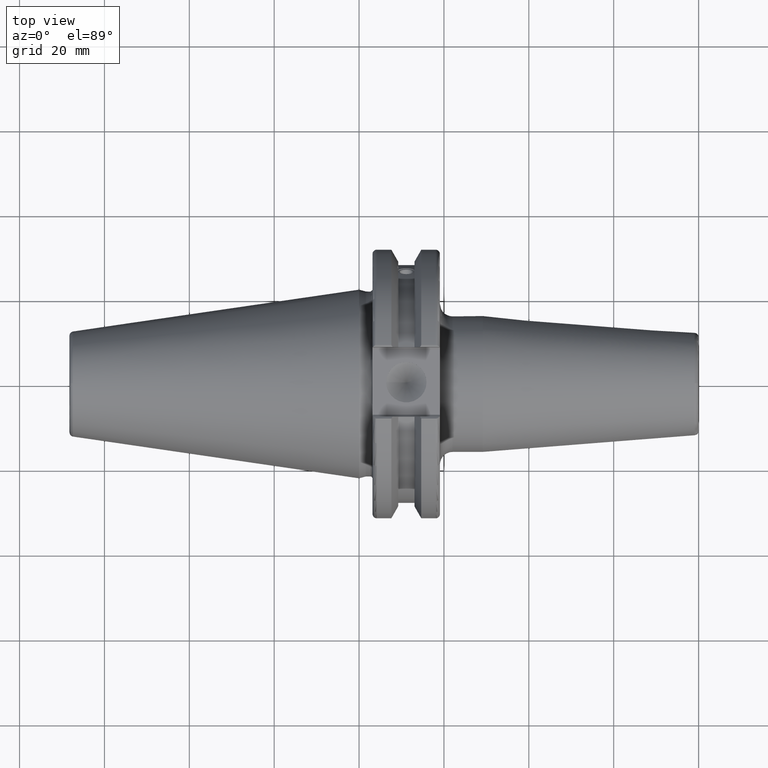
[diagram: clean part render]
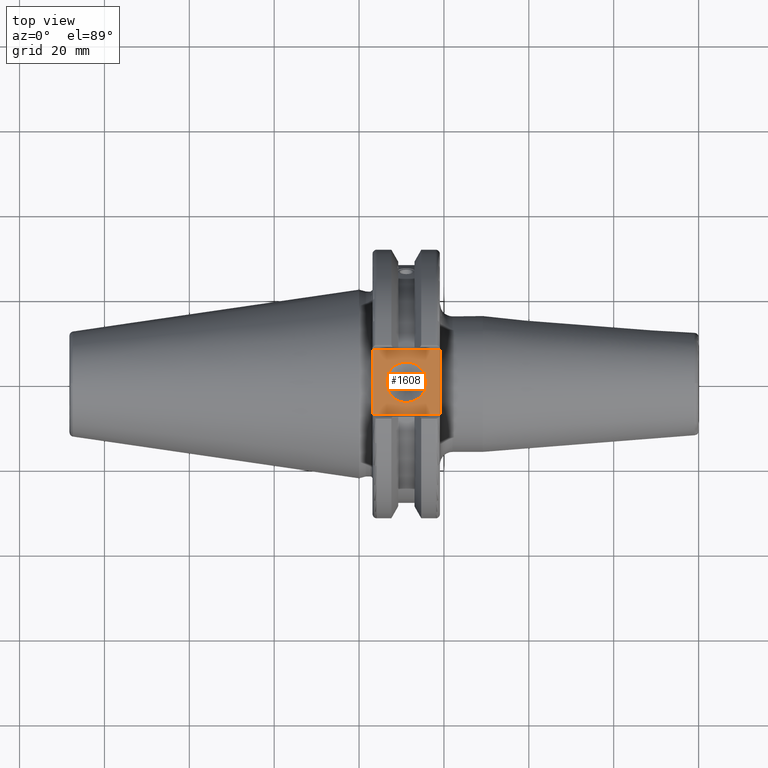
[diagram: same view with one face highlighted and labeled with its STEP entity id]
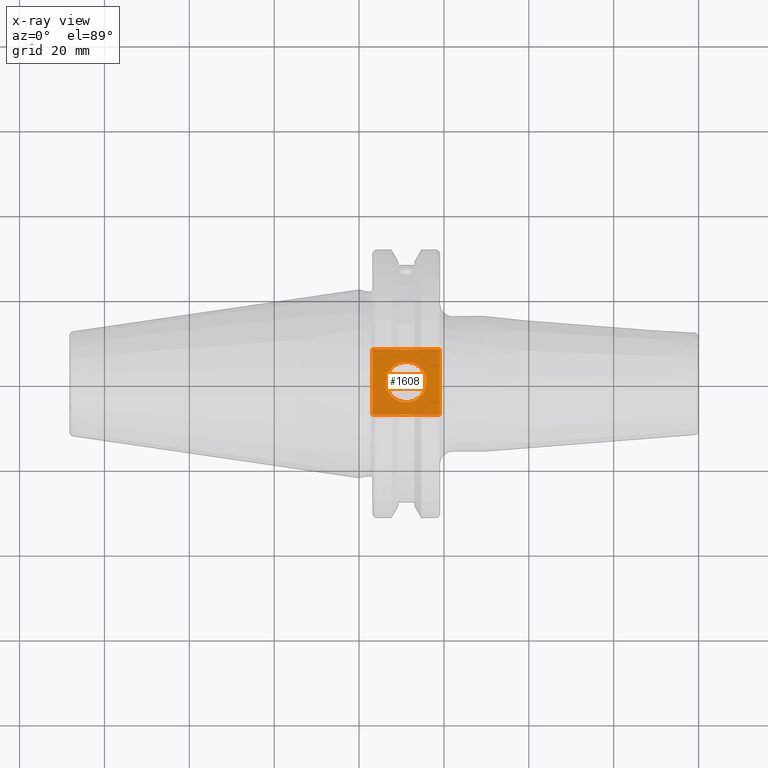
[diagram: x-ray of the same camera — body ghosted, the highlighted face saturated]
A machine part, top view. The second image highlights one B-rep face of the part: STEP entity #1608.
The next image is the same camera in x-ray: the body ghosted, the highlighted face saturated — about 0% of this face is hidden behind the body in this view.
In plain terms, the highlighted planar face has unit normal (0, 0, 1).
Its self-contained STEP definition (entity closure, byte-faithful):
#77=FACE_BOUND('',#331,.T.);
#136=PLANE('',#1814);
#223=FACE_OUTER_BOUND('',#330,.T.);
#330=EDGE_LOOP('',(#1462,#1463,#1464,#1465));
#331=EDGE_LOOP('',(#1466));
#405=CIRCLE('',#1802,4.7625);
#420=LINE('',#2343,#516);
#465=LINE('',#2786,#561);
#493=LINE('',#3015,#589);
#495=LINE('',#3018,#591);
#516=VECTOR('',#1882,10.);
#561=VECTOR('',#2113,10.);
#589=VECTOR('',#2207,10.);
#591=VECTOR('',#2211,10.);
#641=VERTEX_POINT('',#2340);
#642=VERTEX_POINT('',#2342);
#732=VERTEX_POINT('',#2783);
#733=VERTEX_POINT('',#2785);
#779=VERTEX_POINT('',#3054);
#803=EDGE_CURVE('',#641,#642,#420,.T.);
#926=EDGE_CURVE('',#732,#733,#465,.T.);
#989=EDGE_CURVE('',#642,#732,#493,.T.);
#991=EDGE_CURVE('',#733,#641,#495,.T.);
#1006=EDGE_CURVE('',#779,#779,#405,.T.);
#1462=ORIENTED_EDGE('',*,*,#989,.F.);
#1463=ORIENTED_EDGE('',*,*,#803,.F.);
#1464=ORIENTED_EDGE('',*,*,#991,.F.);
#1465=ORIENTED_EDGE('',*,*,#926,.F.);
#1466=ORIENTED_EDGE('',*,*,#1006,.T.);
#1608=ADVANCED_FACE('',(#223,#77),#136,.T.);
#1802=AXIS2_PLACEMENT_3D('',#3055,#2246,#2247);
#1814=AXIS2_PLACEMENT_3D('',#3068,#2271,#2272);
#1882=DIRECTION('',(0.,-1.,0.));
#2113=DIRECTION('',(0.,1.,0.));
#2207=DIRECTION('',(-1.,1.31581988103722E-16,0.));
#2211=DIRECTION('',(1.,0.,0.));
#2246=DIRECTION('center_axis',(0.,0.,-1.));
#2247=DIRECTION('ref_axis',(1.,0.,0.));
#2271=DIRECTION('center_axis',(0.,0.,1.));
#2272=DIRECTION('ref_axis',(1.,0.,0.));
#2340=CARTESIAN_POINT('',(19.05,7.69,25.));
#2342=CARTESIAN_POINT('',(19.05,-7.69,25.));
#2343=CARTESIAN_POINT('',(19.05,0.,25.));
#2783=CARTESIAN_POINT('',(3.175,-7.68999999999999,25.));
#2785=CARTESIAN_POINT('',(3.175,7.69,25.));
#2786=CARTESIAN_POINT('',(3.175,15.875,25.));
#3015=CARTESIAN_POINT('',(9.44125,-7.69,25.));
#3018=CARTESIAN_POINT('',(17.87875,7.69,25.));
#3054=CARTESIAN_POINT('',(6.3716,-5.83238038093927E-16,25.));
#3055=CARTESIAN_POINT('Origin',(11.1341,0.,25.));
#3068=CARTESIAN_POINT('Origin',(15.7075,0.,25.));